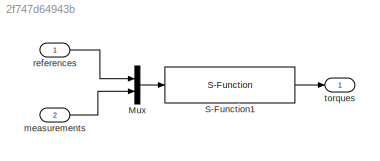
MODEL slx_2f747d64943b
KIND model
CONFIG AbsTol = auto
CONFIG FixedStep = auto
CONFIG MaxStep = auto
CONFIG MinStep = auto
CONFIG RelTol = 1e-3
CONFIG SampleTimeConstraint = Unconstrained
CONFIG Solver = VariableStepAuto
CONFIG SolverMode = Auto
CONFIG SolverName = VariableStepAuto
CONFIG StartTime = 0.0
CONFIG StopTime = 10
BLOCK [Mux] Mux
  DisplayOption = bar
  Inputs = 2
  Ports = [2, 1]
BLOCK [S-Function] S-Function1
  EnableBusSupport = off
  FunctionName = sfunc_inner_PD_angle_d
  Parameters = PD_angle_param
  Ports = [1, 1]
  SFunctionDeploymentMode = off
BLOCK [Inport] measurements
  IconDisplay = Port number
  Port = 2
  PortDimensions = 12
BLOCK [Inport] references
  IconDisplay = Port number
  PortDimensions = 12
BLOCK [Outport] torques
  IconDisplay = Port number
LINE Mux:1 -> S-Function1:1
LINE S-Function1:1 -> torques:1
LINE measurements:1 -> Mux:2
LINE references:1 -> Mux:1
